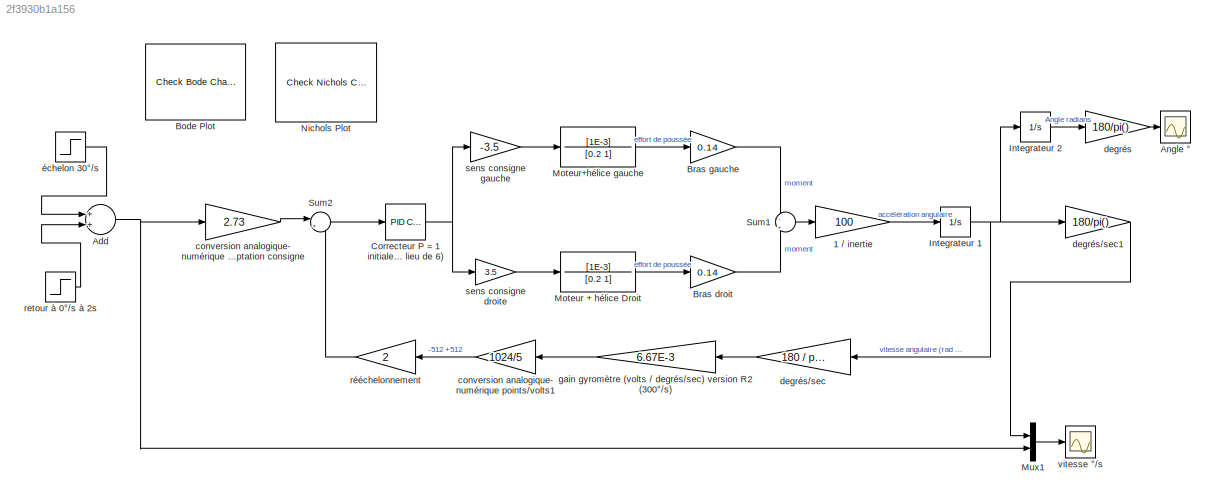
MODEL slx_2f3930b1a156
KIND model
BLOCK [Gain] 1 // inertie
  Gain = 100
  OutDataTypeStr = Inherit: Inherit via internal rule
  ParamDataTypeStr = Inherit: Inherit via internal rule
  SaturateOnIntegerOverflow = off
BLOCK [Sum] Add
  InputSameDT = off
  OutDataTypeStr = Inherit: Inherit via internal rule
  Ports = [2, 1]
  SaturateOnIntegerOverflow = off
BLOCK [Scope] Angle °
  DataFormat = StructureWithTime
  Floating = off
  LimitDataPoints = off
  NumInputPorts = 1
  Ports = [1]
  SampleTime = 0
  ShowLegends = off
  YMax = 10
  YMin = -1
  ZoomMode = xonly
BLOCK [Reference] Bode Plot  REF=slctrlblks/Model Verification/Check Bode 
Characteristics
  EnableLowerBound = off
  EnableUpperBound = off
  FrequencyUnits = rad/s
  InstantiateOnLoad = on
  LaunchViewOnOpen = on
  LinearizationIOs = {'/Sum2', 1, 'in', 'on', '';'/rééchelonnement', 1, 'out', 'on', ''}
  LinearizeAt = SnapshotTimes
  LowerBoundFrequencies = []
  LowerBoundMagnitudes = []
  MagnitudeUnits = dB
  OpenViewOnLoad = off
  PhaseUnits = deg
  Ports = []
  PreWarpFreq = 10
  RateConversionMethod = zoh
  SampleTime = auto
  SaveName = sys
  SaveToWorkspace = off
  SnapshotTimes = [0]
  SourceBlock = slctrlblks/Model Verification/Check Bode \nCharacteristics
  SourceType = Checks_Bode
  TimeUnits = seconds
  TriggerType = rising
  UpperBoundFrequencies = []
  UpperBoundMagnitudes = []
  UseBusSignalLabels = off
  UseExactDelayModel = off
  UseFullBlockNameLabels = off
  ViewDlgPos = [100 -22 510 390]
  ZeroCross = on
  enabled = on
  export = off
  stopWhenAssertionFail = off
BLOCK [Gain] Bras droit
  Gain = 0.14
  OutDataTypeStr = Inherit: Inherit via internal rule
  ParamDataTypeStr = Inherit: Inherit via internal rule
  SaturateOnIntegerOverflow = off
BLOCK [Gain] Bras gauche
  Gain = 0.14
  OutDataTypeStr = Inherit: Inherit via internal rule
  ParamDataTypeStr = Inherit: Inherit via internal rule
  SaturateOnIntegerOverflow = off
BLOCK [Reference] Correcteur P = 1 initialement (attention pour Kd : utiliser 6//50 au lieu de 6)  REF=simulink/Continuous/PID Controller
  AntiWindupMode = none
  Controller = PID
  D = 0
  DOutDataTypeStr = Inherit: Inherit via internal rule
  DOutMax = []
  DOutMin = []
  DParamDataTypeStr = Inherit: Inherit via internal rule
  DParamMax = []
  DParamMin = []
  ExternalReset = none
  FilterContinuousStateAttributes = ''
  FilterMethod = Forward Euler
  FilterOutDataTypeStr = Inherit: Inherit via internal rule
  FilterOutMax = []
  FilterOutMin = []
  FilterRTWStateStorageClass = Auto
  FilterStateMustResolveToSignalObject = off
  Form = Parallel
  I = 0
  IOutDataTypeStr = Inherit: Inherit via internal rule
  IOutMax = []
  IOutMin = []
  IParamDataTypeStr = Inherit: Inherit via internal rule
  IParamMax = []
  IParamMin = []
  IgnoreLimit = off
  InitialConditionForFilter = 0
  InitialConditionForIntegrator = 0
  InitialConditionSource = internal
  IntegratorContinuousStateAttributes = ''
  IntegratorMethod = Forward Euler
  IntegratorOutDataTypeStr = Inherit: Inherit via internal rule
  IntegratorOutMax = []
  IntegratorOutMin = []
  IntegratorRTWStateStorageClass = Auto
  IntegratorStateMustResolveToSignalObject = off
  Kb = 1
  KbOutDataTypeStr = Inherit: Inherit via internal rule
  KbOutMax = []
  KbOutMin = []
  KbParamDataTypeStr = Inherit: Inherit via internal rule
  KbParamMax = []
  KbParamMin = []
  Kt = 1
  KtOutDataTypeStr = Inherit: Inherit via internal rule
  KtOutMax = []
  KtOutMin = []
  KtParamDataTypeStr = Inherit: Inherit via internal rule
  KtParamMax = []
  KtParamMin = []
  LimitOutput = off
  LinearizeAsGain = on
  LockScale = off
  LowerSaturationLimit = -inf
  N = 50
  NOutDataTypeStr = Inherit: Inherit via internal rule
  NOutMax = []
  NOutMin = []
  NParamDataTypeStr = Inherit: Inherit via internal rule
  NParamMax = []
  NParamMin = []
  P = 1
  POutDataTypeStr = Inherit: Inherit via internal rule
  POutMax = []
  POutMin = []
  PParamDataTypeStr = Inherit: Inherit via internal rule
  PParamMax = []
  PParamMin = []
  Ports = [1, 1]
  RndMeth = Floor
  SampleTime = 1
  SaturateOnIntegerOverflow = off
  SaturationOutDataTypeStr = Inherit: Same as input
  SaturationOutMax = []
  SaturationOutMin = []
  SourceBlock = simulink/Continuous/PID Controller
  SourceType = PID 1dof
  SumAccumDataTypeStr = Inherit: Inherit via internal rule
  SumDAccumDataTypeStr = Inherit: Inherit via internal rule
  SumDOutDataTypeStr = Inherit: Inherit via internal rule
  SumDOutMax = []
  SumDOutMin = []
  SumI1AccumDataTypeStr = Inherit: Inherit via internal rule
  SumI1OutDataTypeStr = Inherit: Inherit via internal rule
  SumI1OutMax = []
  SumI1OutMin = []
  SumI2AccumDataTypeStr = Inherit: Inherit via internal rule
  SumI2OutDataTypeStr = Inherit: Inherit via internal rule
  SumI2OutMax = []
  SumI2OutMin = []
  SumI3AccumDataTypeStr = Inherit: Inherit via internal rule
  SumI3OutDataTypeStr = Inherit: Inherit via internal rule
  SumI3OutMax = []
  SumI3OutMin = []
  SumOutDataTypeStr = Inherit: Inherit via internal rule
  SumOutMax = []
  SumOutMin = []
  TimeDomain = Continuous-time
  TrackingMode = off
  UpperSaturationLimit = inf
  ZeroCross = on
BLOCK [Integrator] Integrateur 1
  Ports = [1, 1]
BLOCK [Integrator] Integrateur 2
  Ports = [1, 1]
BLOCK [TransferFcn] Moteur + hélice Droit
  Denominator = [0.2 1]
  Numerator = [1E-3]
BLOCK [TransferFcn] Moteur+hélice gauche
  Denominator = [0.2 1]
  Numerator = [1E-3]
BLOCK [Mux] Mux1
  DisplayOption = bar
  Inputs = 2
  Ports = [2, 1]
BLOCK [Reference] Nichols Plot  REF=slctrlblks/Model Verification/Check Nichols
Characteristics
  CLPeakGain = []
  EnableCLPeakGain = off
  EnableGainPhaseBound = off
  EnableMargins = off
  FeedbackSign = -1
  FrequencyUnits = rad/s
  GainMargin = []
  GainPhaseBoundType = {'upper'}
  InstantiateOnLoad = on
  LaunchViewOnOpen = on
  LinearizationIOs = {'/Sum2', 1, 'in', 'on', '';'/rééchelonnement', 1, 'out', 'on', ''}
  LinearizeAt = SnapshotTimes
  MagnitudeUnits = dB
  OLGains = []
  OLPhases = []
  OpenViewOnLoad = off
  PhaseMargin = []
  PhaseUnits = deg
  Ports = []
  PreWarpFreq = 10
  RateConversionMethod = zoh
  SampleTime = auto
  SaveName = sys
  SaveToWorkspace = off
  SnapshotTimes = [0]
  SourceBlock = slctrlblks/Model Verification/Check Nichols\nCharacteristics
  SourceType = Checks_Nichols
  TimeUnits = seconds
  TriggerType = rising
  UseBusSignalLabels = off
  UseExactDelayModel = off
  UseFullBlockNameLabels = off
  ViewDlgPos = [1529 376 510 390]
  ZeroCross = on
  enabled = on
  export = off
  stopWhenAssertionFail = off
BLOCK [Sum] Sum1
  IconShape = round
  InputSameDT = off
  Inputs = -|+
  OutDataTypeStr = Inherit: Inherit via internal rule
  Ports = [2, 1]
  SaturateOnIntegerOverflow = off
BLOCK [Sum] Sum2
  IconShape = round
  InputSameDT = off
  Inputs = |+-
  OutDataTypeStr = Inherit: Inherit via internal rule
  Ports = [2, 1]
  SaturateOnIntegerOverflow = off
BLOCK [Gain] conversion analogique- numérique points//volts 15 bits et adaptation consigne
  Gain = 2.73
  OutDataTypeStr = Inherit: Inherit via internal rule
  ParamDataTypeStr = Inherit: Inherit via internal rule
  SaturateOnIntegerOverflow = off
BLOCK [Gain] conversion analogique- numérique points//volts1
  Gain = 1024/5
  OutDataTypeStr = Inherit: Inherit via internal rule
  ParamDataTypeStr = Inherit: Inherit via internal rule
  SaturateOnIntegerOverflow = off
BLOCK [Gain] degrés
  Gain = 180/pi()
  OutDataTypeStr = Inherit: Inherit via internal rule
  ParamDataTypeStr = Inherit: Inherit via internal rule
  SaturateOnIntegerOverflow = off
BLOCK [Gain] degrés//sec
  Gain = 180 / pi()
  OutDataTypeStr = Inherit: Inherit via internal rule
  ParamDataTypeStr = Inherit: Inherit via internal rule
  SaturateOnIntegerOverflow = off
BLOCK [Gain] degrés//sec1
  Gain = 180/pi()
  OutDataTypeStr = Inherit: Inherit via internal rule
  ParamDataTypeStr = Inherit: Inherit via internal rule
  SaturateOnIntegerOverflow = off
BLOCK [Gain] gain gyromètre (volts // degrés//sec) version R2 (300°//s)
  Gain = 6.67E-3
  OutDataTypeStr = Inherit: Inherit via internal rule
  ParamDataTypeStr = Inherit: Inherit via internal rule
  SaturateOnIntegerOverflow = off
BLOCK [Step] retour à 0°//s à 2s
  After = -30
  SampleTime = 0
  Time = 2
BLOCK [Gain] rééchelonnement
  Gain = 2
  OutDataTypeStr = Inherit: Inherit via internal rule
  ParamDataTypeStr = Inherit: Inherit via internal rule
  SaturateOnIntegerOverflow = off
BLOCK [Gain] sens consigne droite
  Gain = 3.5
  OutDataTypeStr = Inherit: Inherit via internal rule
  ParamDataTypeStr = Inherit: Inherit via internal rule
  SaturateOnIntegerOverflow = off
BLOCK [Gain] sens consigne gauche
  Gain = -3.5
  OutDataTypeStr = Inherit: Inherit via internal rule
  ParamDataTypeStr = Inherit: Inherit via internal rule
  SaturateOnIntegerOverflow = off
BLOCK [Scope] vitesse °//s
  DataFormat = StructureWithTime
  Floating = off
  LimitDataPoints = off
  NumInputPorts = 1
  Ports = [1]
  SampleTime = 0
  SaveName = ScopeData4
  ShowLegends = off
  YMax = 10
  YMin = -1
BLOCK [Step] échelon 30°//s
  After = 30
  SampleTime = 0
  Time = 0
LINE 1 // inertie:1 -> Integrateur 1:1
NET Add:1 -> Mux1:2, conversion analogique- numérique points//volts 15 bits et adaptation consigne:1
LINE Bras droit:1 -> Sum1:2
LINE Bras gauche:1 -> Sum1:1
NET Correcteur P = 1 initialement (attention pour Kd : utiliser 6//50 au lieu de 6):1 -> sens consigne droite:1, sens consigne gauche:1
NET Integrateur 1:1 -> Integrateur 2:1, degrés//sec1:1, degrés//sec:1
LINE Integrateur 2:1 -> degrés:1
LINE Moteur + hélice Droit:1 -> Bras droit:1
LINE Moteur+hélice gauche:1 -> Bras gauche:1
LINE Mux1:1 -> vitesse °//s:1
LINE Sum1:1 -> 1 // inertie:1
LINE Sum2:1 -> Correcteur P = 1 initialement (attention pour Kd : utiliser 6//50 au lieu de 6):1
LINE conversion analogique- numérique points//volts 15 bits et adaptation consigne:1 -> Sum2:1
LINE conversion analogique- numérique points//volts1:1 -> rééchelonnement:1
LINE degrés//sec1:1 -> Mux1:1
LINE degrés//sec:1 -> gain gyromètre (volts // degrés//sec) version R2 (300°//s):1
LINE degrés:1 -> Angle °:1
LINE gain gyromètre (volts // degrés//sec) version R2 (300°//s):1 -> conversion analogique- numérique points//volts1:1
LINE retour à 0°//s à 2s:1 -> Add:2
LINE rééchelonnement:1 -> Sum2:2
LINE sens consigne droite:1 -> Moteur + hélice Droit:1
LINE sens consigne gauche:1 -> Moteur+hélice gauche:1
LINE échelon 30°//s:1 -> Add:1
note: NET lines group one-source signal fan-out (src -> all destinations, sorted); 1:1 wires keep LINE
